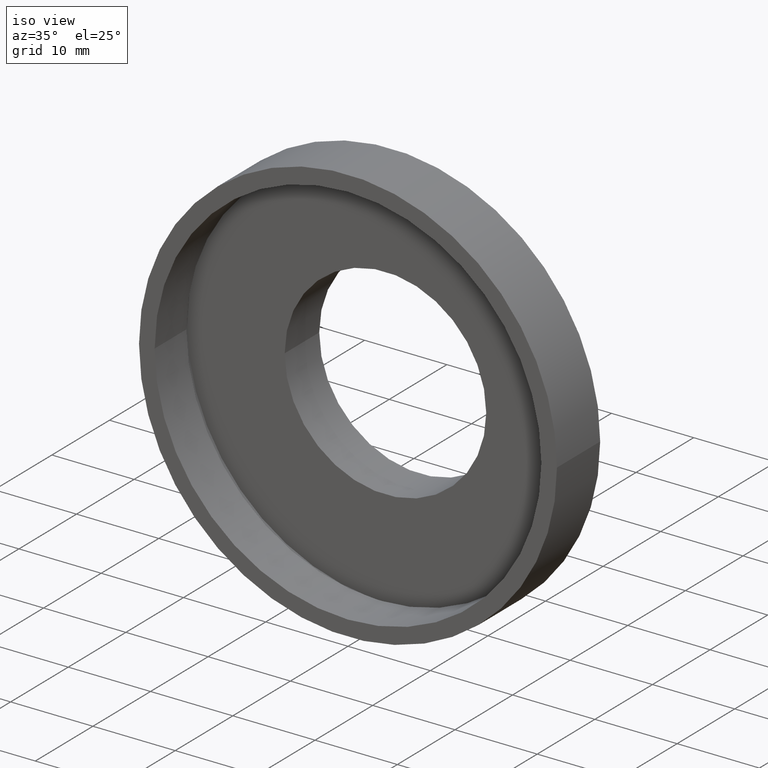
[diagram: clean part render]
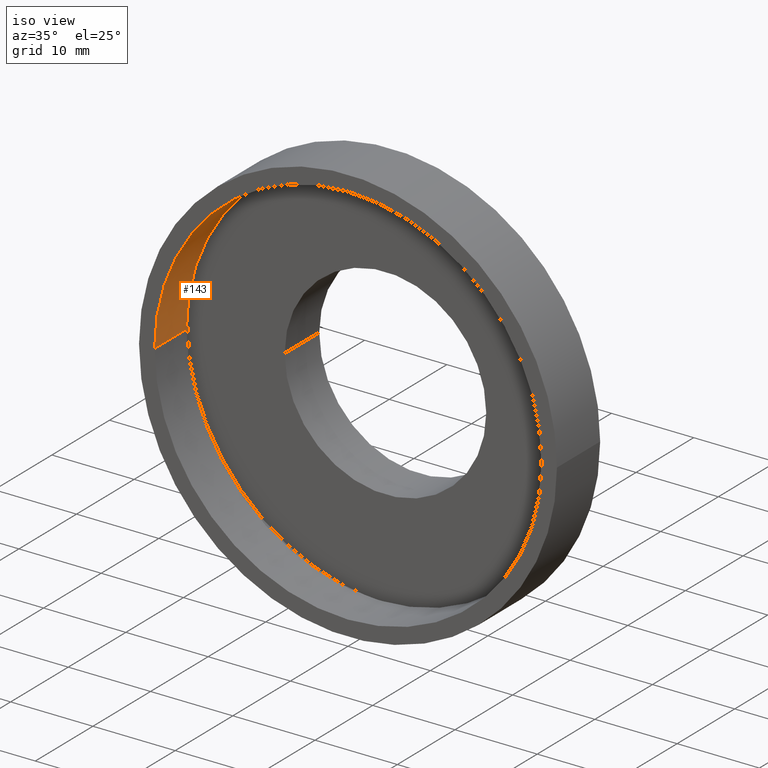
[diagram: same view with one face highlighted and labeled with its STEP entity id]
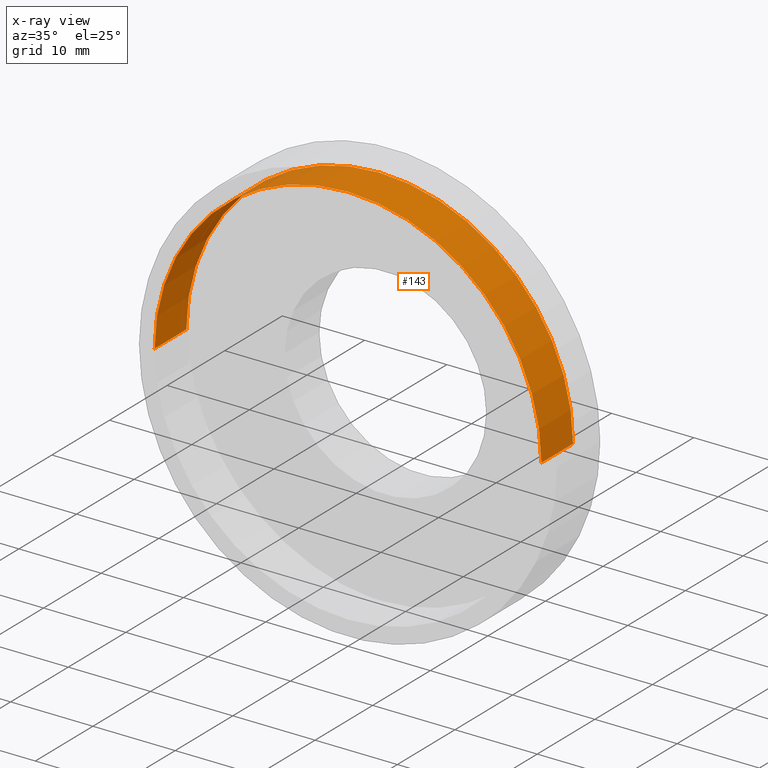
[diagram: x-ray of the same camera — body ghosted, the highlighted face saturated]
A machine part, iso view. The second image highlights one B-rep face of the part: STEP entity #143.
The next image is the same camera in x-ray: the body ghosted, the highlighted face saturated — about 0% of this face is hidden behind the body in this view.
In plain terms, the highlighted cylindrical surface (partial cylindrical patch) has radius 23.5 mm, axis along (-0, 1, -0).
Its self-contained STEP definition (entity closure, byte-faithful):
#18 = DIRECTION ( 'NONE',  ( -1.000000000000000000, -1.224646799147351200E-016, 0.0000000000000000000 ) ) ;
#29 = CIRCLE ( 'NONE', #614, 23.50000000000000000 ) ;
#32 = DIRECTION ( 'NONE',  ( -1.224646799147351000E-016, 1.000000000000000000, -0.0000000000000000000 ) ) ;
#51 = EDGE_LOOP ( 'NONE', ( #424, #327, #386, #474 ) ) ;
#60 = CARTESIAN_POINT ( 'NONE',  ( 23.50000000000000700, 5.499999999999999100, 2.877919977996281100E-015 ) ) ;
#78 = DIRECTION ( 'NONE',  ( -1.224646799147351000E-016, 1.000000000000000000, -0.0000000000000000000 ) ) ;
#90 = CARTESIAN_POINT ( 'NONE',  ( 1.394385078907593200E-015, 5.499999999999996400, 0.0000000000000000000 ) ) ;
#97 = FACE_OUTER_BOUND ( 'NONE', #51, .T. ) ;
#120 = CARTESIAN_POINT ( 'NONE',  ( -23.50000000000000000, 16.88601823708207300, 0.0000000000000000000 ) ) ;
#143 = ADVANCED_FACE ( 'NONE', ( #97 ), #203, .F. ) ;
#156 = VERTEX_POINT ( 'NONE', #60 ) ;
#162 = VECTOR ( 'NONE', #78, 1000.000000000000000 ) ;
#203 = CYLINDRICAL_SURFACE ( 'NONE', #460, 23.50000000000000000 ) ;
#242 = DIRECTION ( 'NONE',  ( -1.224646799147351000E-016, 1.000000000000000000, -0.0000000000000000000 ) ) ;
#274 = CARTESIAN_POINT ( 'NONE',  ( -23.49999999999999600, -6.347366929949889400E-015, 0.0000000000000000000 ) ) ;
#321 = EDGE_CURVE ( 'NONE', #338, #156, #326, .T. ) ;
#326 = CIRCLE ( 'NONE', #355, 23.50000000000000400 ) ;
#327 = ORIENTED_EDGE ( 'NONE', *, *, #605, .F. ) ;
#338 = VERTEX_POINT ( 'NONE', #434 ) ;
#354 = VERTEX_POINT ( 'NONE', #513 ) ;
#355 = AXIS2_PLACEMENT_3D ( 'NONE', #90, #597, #468 ) ;
#386 = ORIENTED_EDGE ( 'NONE', *, *, #506, .T. ) ;
#401 = LINE ( 'NONE', #593, #532 ) ;
#404 = DIRECTION ( 'NONE',  ( -1.000000000000000000, -1.476360405086644300E-016, 0.0000000000000000000 ) ) ;
#424 = ORIENTED_EDGE ( 'NONE', *, *, #512, .F. ) ;
#434 = CARTESIAN_POINT ( 'NONE',  ( -23.50000000000000400, 5.499999999999993800, 0.0000000000000000000 ) ) ;
#460 = AXIS2_PLACEMENT_3D ( 'NONE', #521, #591, #404 ) ;
#461 = VERTEX_POINT ( 'NONE', #274 ) ;
#468 = DIRECTION ( 'NONE',  ( -1.000000000000000000, -1.107270303814983000E-016, 0.0000000000000000000 ) ) ;
#474 = ORIENTED_EDGE ( 'NONE', *, *, #321, .T. ) ;
#496 = LINE ( 'NONE', #120, #162 ) ;
#506 = EDGE_CURVE ( 'NONE', #461, #338, #496, .T. ) ;
#512 = EDGE_CURVE ( 'NONE', #354, #156, #401, .T. ) ;
#513 = CARTESIAN_POINT ( 'NONE',  ( 23.50000000000000700, -5.915269739573390000E-016, 2.877919977996281100E-015 ) ) ;
#521 = CARTESIAN_POINT ( 'NONE',  ( 0.0000000000000000000, 16.88601823708207700, 0.0000000000000000000 ) ) ;
#532 = VECTOR ( 'NONE', #242, 1000.000000000000000 ) ;
#561 = CARTESIAN_POINT ( 'NONE',  ( 2.067940818438636500E-015, -3.469446951953614200E-015, 0.0000000000000000000 ) ) ;
#591 = DIRECTION ( 'NONE',  ( -1.224646799147351000E-016, 1.000000000000000000, -0.0000000000000000000 ) ) ;
#593 = CARTESIAN_POINT ( 'NONE',  ( 23.50000000000000000, 16.88601823708208000, 2.877919977996280300E-015 ) ) ;
#597 = DIRECTION ( 'NONE',  ( -1.224646799147351000E-016, 1.000000000000000000, -0.0000000000000000000 ) ) ;
#605 = EDGE_CURVE ( 'NONE', #461, #354, #29, .T. ) ;
#614 = AXIS2_PLACEMENT_3D ( 'NONE', #561, #32, #18 ) ;